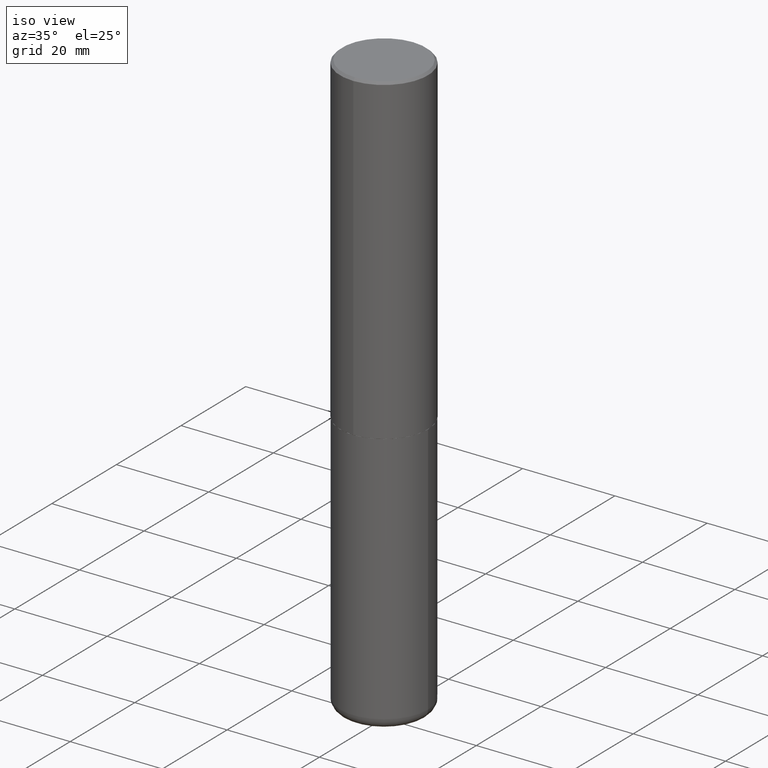
[diagram: clean part render]
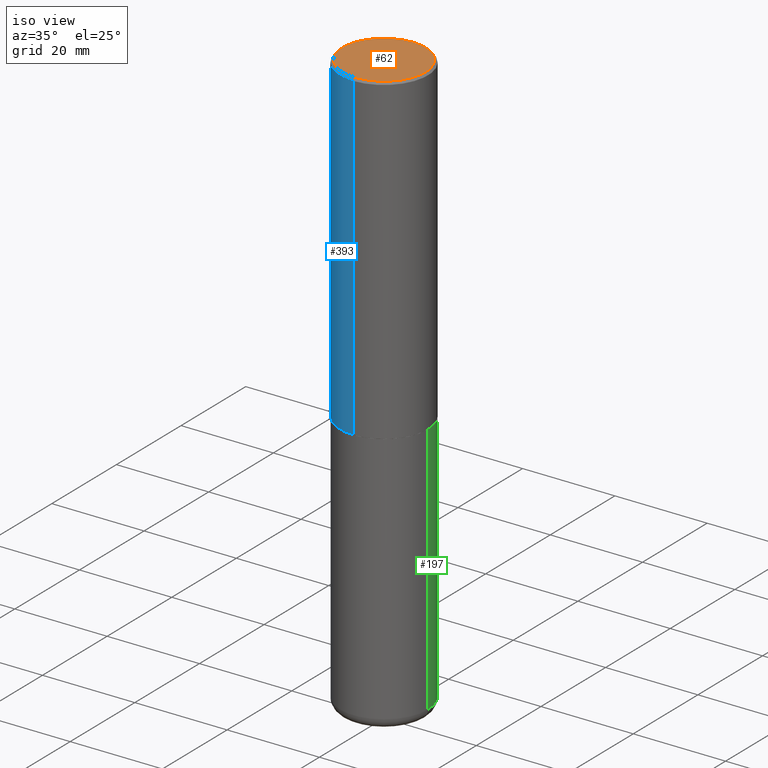
[diagram: same view with three faces highlighted in distinct colors, each labeled with its STEP entity id]
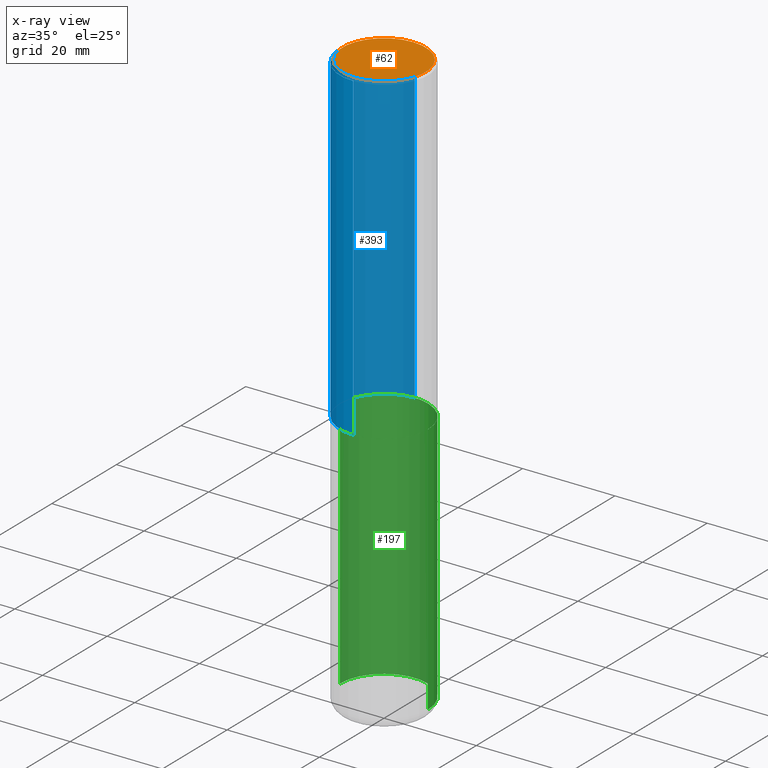
[diagram: x-ray of the same camera — body ghosted, the three highlighted faces saturated]
A machine part, iso view with three faces highlighted in distinct colors.
The next image is the same camera in x-ray (body ghosted, the three faces saturated) — at least one of them is partly hidden behind the body in this view.
Their STEP definitions:

[orange] entity #62 — the highlighted planar face has unit normal (0, -0, -1).
#8 = EDGE_CURVE ( 'NONE', #18, #35, #85, .T. ) ;
#17 = DIRECTION ( 'NONE',  ( -6.982962677686265922E-15, -1.000000000000000000, 3.490662795793665557E-15 ) ) ;
#18 = VERTEX_POINT ( 'NONE', #108 ) ;
#20 = DIRECTION ( 'NONE',  ( 2.446040391741596045E-29, -3.490662795793665557E-15, -1.000000000000000000 ) ) ;
#21 = CARTESIAN_POINT ( 'NONE',  ( -1.141397163745304909E-45, 1.628849886601155835E-31, 4.666305460853910467E-17 ) ) ;
#22 = EDGE_CURVE ( 'NONE', #35, #18, #391, .T. ) ;
#35 = VERTEX_POINT ( 'NONE', #110 ) ;
#49 = AXIS2_PLACEMENT_3D ( 'NONE', #21, #297, #17 ) ;
#61 = EDGE_LOOP ( 'NONE', ( #194, #93 ) ) ;
#62 = ADVANCED_FACE ( 'NONE', ( #401 ), #269, .F. ) ;
#85 = CIRCLE ( 'NONE', #254, 0.3549999999999999822 ) ;
#93 = ORIENTED_EDGE ( 'NONE', *, *, #8, .T. ) ;
#108 = CARTESIAN_POINT ( 'NONE',  ( -2.504081769186608216E-15, -0.3549999999999999822, 1.285848347115290366E-15 ) ) ;
#110 = CARTESIAN_POINT ( 'NONE',  ( 2.548781377355487113E-15, 0.3549999999999999822, -1.192522237898212341E-15 ) ) ;
#112 = DIRECTION ( 'NONE',  ( 6.982962677686265922E-15, 1.000000000000000000, -3.490662795793665557E-15 ) ) ;
#187 = AXIS2_PLACEMENT_3D ( 'NONE', #331, #20, #112 ) ;
#194 = ORIENTED_EDGE ( 'NONE', *, *, #22, .T. ) ;
#204 = DIRECTION ( 'NONE',  ( -2.446040391741596606E-29, 3.490662795793665557E-15, 1.000000000000000000 ) ) ;
#254 = AXIS2_PLACEMENT_3D ( 'NONE', #264, #204, #301 ) ;
#264 = CARTESIAN_POINT ( 'NONE',  ( -1.141397163745304909E-45, 1.628849886601155835E-31, 4.666305460853910467E-17 ) ) ;
#269 = PLANE ( 'NONE',  #187 ) ;
#297 = DIRECTION ( 'NONE',  ( -2.446040391741596606E-29, 3.490662795793665557E-15, 1.000000000000000000 ) ) ;
#301 = DIRECTION ( 'NONE',  ( -6.982962677686265922E-15, -1.000000000000000000, 3.490662795793665557E-15 ) ) ;
#331 = CARTESIAN_POINT ( 'NONE',  ( 2.478951750578624209E-15, 0.3549999999999999822, -1.215853765202481601E-15 ) ) ;
#391 = CIRCLE ( 'NONE', #49, 0.3549999999999999822 ) ;
#401 = FACE_OUTER_BOUND ( 'NONE', #61, .T. ) ;

[blue] entity #393 — the highlighted cylindrical surface (partial cylindrical patch) has radius 9.525 mm, axis along (-0, 0, 1).
#14 = EDGE_CURVE ( 'NONE', #66, #224, #158, .T. ) ;
#15 = LINE ( 'NONE', #266, #222 ) ;
#26 = EDGE_LOOP ( 'NONE', ( #341, #387, #160, #338 ) ) ;
#36 = CARTESIAN_POINT ( 'NONE',  ( -2.572686749164323547E-15, -0.3750000000000001110, -0.01999999999999877570 ) ) ;
#37 = AXIS2_PLACEMENT_3D ( 'NONE', #74, #46, #397 ) ;
#46 = DIRECTION ( 'NONE',  ( -2.446040391741596606E-29, 3.490662795793665557E-15, 1.000000000000000000 ) ) ;
#54 = VERTEX_POINT ( 'NONE', #174 ) ;
#66 = VERTEX_POINT ( 'NONE', #149 ) ;
#68 = CIRCLE ( 'NONE', #335, 0.3750000000000003886 ) ;
#74 = CARTESIAN_POINT ( 'NONE',  ( 4.892080783483214581E-31, -6.981325591587361238E-17, -0.02000000000000008715 ) ) ;
#87 = DIRECTION ( 'NONE',  ( -2.446040391741596606E-29, 3.490662795793665557E-15, 1.000000000000000000 ) ) ;
#117 = DIRECTION ( 'NONE',  ( -2.446040391741596606E-29, 3.490662795793665557E-15, 1.000000000000000000 ) ) ;
#128 = FACE_OUTER_BOUND ( 'NONE', #26, .T. ) ;
#146 = VECTOR ( 'NONE', #117, 39.37007874015748143 ) ;
#149 = CARTESIAN_POINT ( 'NONE',  ( 2.618611004132350411E-15, 0.3749999999999999445, -0.02000000000000139513 ) ) ;
#150 = LINE ( 'NONE', #409, #146 ) ;
#158 = CIRCLE ( 'NONE', #37, 0.3750000000000000555 ) ;
#160 = ORIENTED_EDGE ( 'NONE', *, *, #349, .T. ) ;
#174 = CARTESIAN_POINT ( 'NONE',  ( 2.664535259100411196E-15, 0.3749999999999907296, -2.749000000000000998 ) ) ;
#213 = CYLINDRICAL_SURFACE ( 'NONE', #407, 0.3750000000000002220 ) ;
#222 = VECTOR ( 'NONE', #395, 39.37007874015748143 ) ;
#224 = VERTEX_POINT ( 'NONE', #36 ) ;
#246 = DIRECTION ( 'NONE',  ( -6.982962677686265922E-15, -1.000000000000000000, 2.913971193241877611E-15 ) ) ;
#266 = CARTESIAN_POINT ( 'NONE',  ( -2.618611004132351594E-15, -0.3750000000000002220, 1.308998548422625521E-15 ) ) ;
#292 = CARTESIAN_POINT ( 'NONE',  ( -2.618611004132284935E-15, -0.3750000000000099920, -2.748999999999999222 ) ) ;
#325 = VERTEX_POINT ( 'NONE', #292 ) ;
#335 = AXIS2_PLACEMENT_3D ( 'NONE', #340, #413, #246 ) ;
#338 = ORIENTED_EDGE ( 'NONE', *, *, #14, .F. ) ;
#340 = CARTESIAN_POINT ( 'NONE',  ( 6.724165036897648492E-29, -9.595832025636787455E-15, -2.749000000000000110 ) ) ;
#341 = ORIENTED_EDGE ( 'NONE', *, *, #410, .F. ) ;
#349 = EDGE_CURVE ( 'NONE', #325, #224, #15, .T. ) ;
#371 = CARTESIAN_POINT ( 'NONE',  ( 0.000000000000000000, 0.000000000000000000, 0.000000000000000000 ) ) ;
#387 = ORIENTED_EDGE ( 'NONE', *, *, #417, .T. ) ;
#393 = ADVANCED_FACE ( 'NONE', ( #128 ), #213, .T. ) ;
#395 = DIRECTION ( 'NONE',  ( -2.446040391741596606E-29, 3.490662795793665557E-15, 1.000000000000000000 ) ) ;
#397 = DIRECTION ( 'NONE',  ( -6.982962677686265922E-15, -1.000000000000000000, 3.494488891895536035E-15 ) ) ;
#407 = AXIS2_PLACEMENT_3D ( 'NONE', #371, #87, #418 ) ;
#409 = CARTESIAN_POINT ( 'NONE',  ( 2.664535259100376880E-15, 0.3750000000000002220, -1.308998548422625521E-15 ) ) ;
#410 = EDGE_CURVE ( 'NONE', #54, #66, #150, .T. ) ;
#413 = DIRECTION ( 'NONE',  ( -2.446040391741596606E-29, 3.490662795793665557E-15, 1.000000000000000000 ) ) ;
#417 = EDGE_CURVE ( 'NONE', #54, #325, #68, .T. ) ;
#418 = DIRECTION ( 'NONE',  ( -6.982962677686266711E-15, -1.000000000000000000, 3.490662795793665951E-15 ) ) ;

[green] entity #197 — the highlighted cylindrical surface (partial cylindrical patch) has radius 9.525 mm, axis along (-0, 0, 1).
#9 = CIRCLE ( 'NONE', #118, 0.3750000000000000555 ) ;
#40 = AXIS2_PLACEMENT_3D ( 'NONE', #311, #415, #388 ) ;
#51 = VERTEX_POINT ( 'NONE', #199 ) ;
#56 = ORIENTED_EDGE ( 'NONE', *, *, #163, .F. ) ;
#98 = DIRECTION ( 'NONE',  ( 1.000000000000000000, -6.982962677686266711E-15, 4.876176775795935793E-29 ) ) ;
#107 = CARTESIAN_POINT ( 'NONE',  ( -0.3750000000000000555, -1.070783826866887333E-14, -2.750000000000000000 ) ) ;
#109 = VECTOR ( 'NONE', #214, 39.37007874015748143 ) ;
#118 = AXIS2_PLACEMENT_3D ( 'NONE', #262, #203, #332 ) ;
#125 = CARTESIAN_POINT ( 'NONE',  ( 0.3750000000000000555, -1.222018468595100145E-14, -2.750000000000000000 ) ) ;
#126 = CIRCLE ( 'NONE', #40, 0.3749999999999999445 ) ;
#155 = VERTEX_POINT ( 'NONE', #125 ) ;
#163 = EDGE_CURVE ( 'NONE', #362, #155, #248, .T. ) ;
#179 = AXIS2_PLACEMENT_3D ( 'NONE', #318, #229, #98 ) ;
#189 = EDGE_CURVE ( 'NONE', #362, #51, #126, .T. ) ;
#193 = CYLINDRICAL_SURFACE ( 'NONE', #179, 0.3749999999999999445 ) ;
#197 = ADVANCED_FACE ( 'NONE', ( #386 ), #193, .T. ) ;
#199 = CARTESIAN_POINT ( 'NONE',  ( -0.3749999999999999445, -1.447863811461947092E-14, -4.910000000000000142 ) ) ;
#203 = DIRECTION ( 'NONE',  ( -2.445468806185136597E-29, 3.491481338843145583E-15, 1.000000000000000000 ) ) ;
#205 = CARTESIAN_POINT ( 'NONE',  ( 0.3749999999999999445, -1.976178437785219664E-14, -4.910000000000000142 ) ) ;
#211 = EDGE_CURVE ( 'NONE', #51, #328, #359, .T. ) ;
#214 = DIRECTION ( 'NONE',  ( -2.445468806185136877E-29, 3.491481338843145188E-15, 1.000000000000000000 ) ) ;
#219 = EDGE_LOOP ( 'NONE', ( #375, #314, #303, #56 ) ) ;
#229 = DIRECTION ( 'NONE',  ( -2.445468806185136597E-29, 3.491481338843145583E-15, 1.000000000000000000 ) ) ;
#248 = LINE ( 'NONE', #378, #109 ) ;
#262 = CARTESIAN_POINT ( 'NONE',  ( 6.725039217009124520E-29, -9.601573681818649859E-15, -2.750000000000000000 ) ) ;
#294 = EDGE_CURVE ( 'NONE', #155, #328, #9, .T. ) ;
#303 = ORIENTED_EDGE ( 'NONE', *, *, #294, .F. ) ;
#311 = CARTESIAN_POINT ( 'NONE',  ( 1.200725183836902132E-28, -1.714317337371984662E-14, -4.910000000000000142 ) ) ;
#314 = ORIENTED_EDGE ( 'NONE', *, *, #211, .T. ) ;
#315 = VECTOR ( 'NONE', #324, 39.37007874015748143 ) ;
#318 = CARTESIAN_POINT ( 'NONE',  ( 0.000000000000000000, 0.000000000000000000, 0.000000000000000000 ) ) ;
#324 = DIRECTION ( 'NONE',  ( -2.445468806185136877E-29, 3.491481338843145188E-15, 1.000000000000000000 ) ) ;
#328 = VERTEX_POINT ( 'NONE', #107 ) ;
#332 = DIRECTION ( 'NONE',  ( 1.000000000000000000, -6.982962677686266711E-15, 0.000000000000000000 ) ) ;
#355 = CARTESIAN_POINT ( 'NONE',  ( -0.3749999999999999445, 2.664535259100375303E-15, -1.844600658845589318E-29 ) ) ;
#359 = LINE ( 'NONE', #355, #315 ) ;
#362 = VERTEX_POINT ( 'NONE', #205 ) ;
#375 = ORIENTED_EDGE ( 'NONE', *, *, #189, .T. ) ;
#378 = CARTESIAN_POINT ( 'NONE',  ( 0.3749999999999999445, -2.618611004132349622E-15, 1.828566290923475642E-29 ) ) ;
#386 = FACE_OUTER_BOUND ( 'NONE', #219, .T. ) ;
#388 = DIRECTION ( 'NONE',  ( 1.000000000000000000, -6.982962677686269077E-15, 0.000000000000000000 ) ) ;
#415 = DIRECTION ( 'NONE',  ( -2.445468806185136597E-29, 3.491481338843145583E-15, 1.000000000000000000 ) ) ;